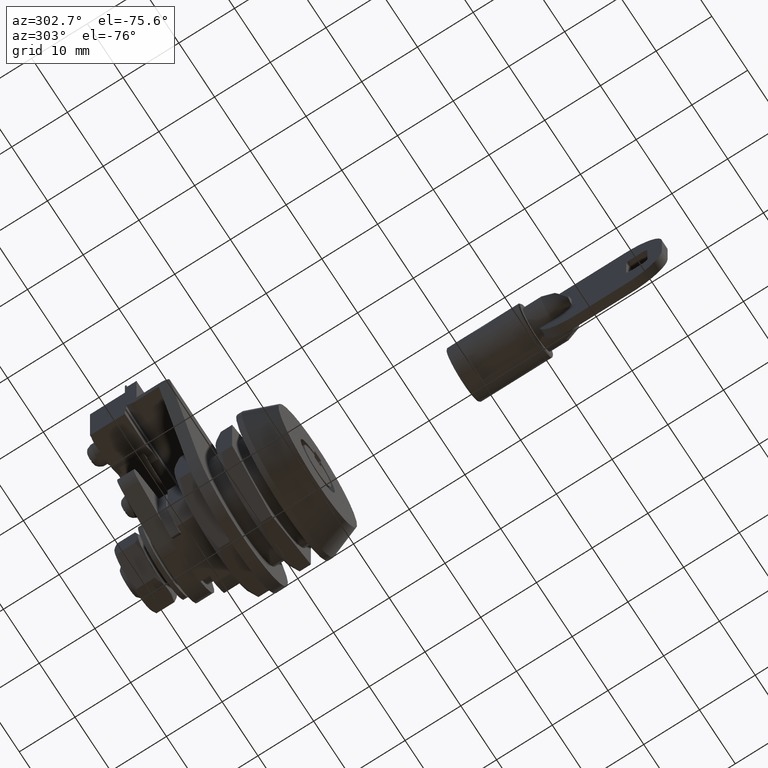
[diagram: clean part render]
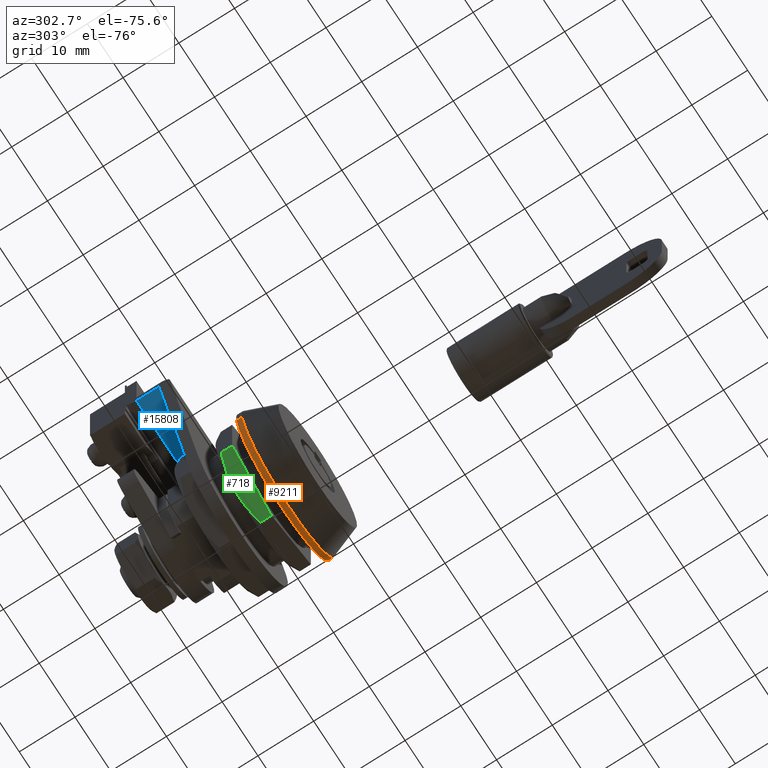
[diagram: same view with three faces highlighted in distinct colors, each labeled with its STEP entity id]
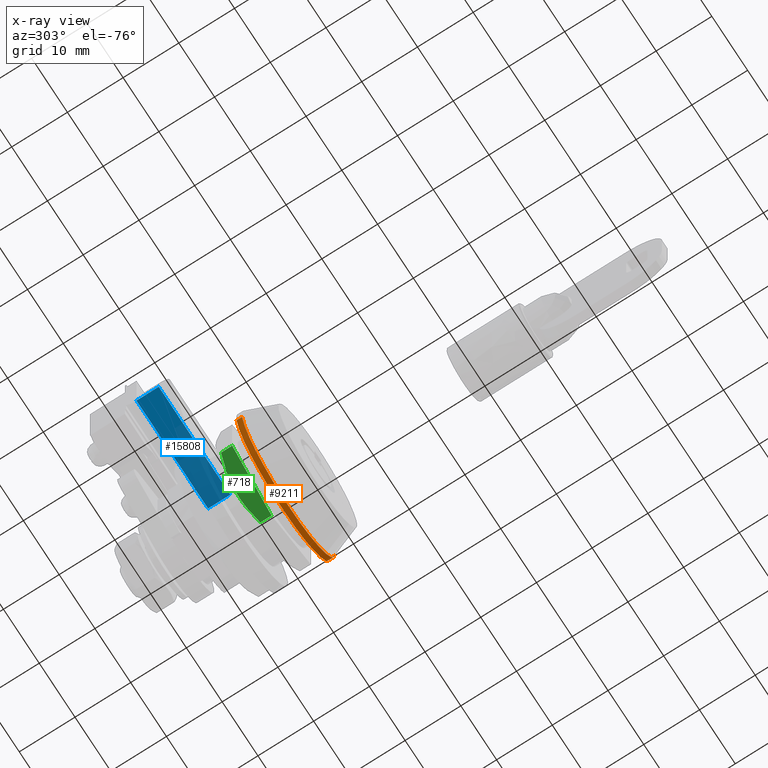
[diagram: x-ray of the same camera — body ghosted, the three highlighted faces saturated]
A machine part, auxiliary view with three faces highlighted in distinct colors.
The next image is the same camera in x-ray (body ghosted, the three faces saturated) — at least one of them is partly hidden behind the body in this view.
Their STEP definitions:

[orange] entity #9211 — the highlighted face is a freeform B-spline surface patch.
#9098=CARTESIAN_POINT('',(6.325003000000222,12.936024903665487,-1.301112250563582));
#9099=CARTESIAN_POINT('',(6.325003000000221,12.925585493234575,-1.392007712779771));
#9100=CARTESIAN_POINT('',(6.325003000000221,11.671596983619057,-12.310427478871693));
#9101=CARTESIAN_POINT('',(6.325003000000222,0.793631013953141,-12.975752379484270));
#9102=CARTESIAN_POINT('',(6.325003000000222,-12.182121365531126,-13.769383393437407));
#9103=CARTESIAN_POINT('',(6.325003000000224,-12.981013635625169,-0.707610236426765));
#9104=CARTESIAN_POINT('',(6.325003000000220,-12.986246076432771,-0.622060585435128));
#9105=CARTESIAN_POINT('',(5.274378000000220,12.936024903665487,-1.301112250563582));
#9106=CARTESIAN_POINT('',(5.274378000000220,12.925585493234575,-1.392007712779771));
#9107=CARTESIAN_POINT('',(5.274378000000220,11.671596983619057,-12.310427478871693));
#9108=CARTESIAN_POINT('',(5.274378000000220,0.793631013953141,-12.975752379484270));
#9109=CARTESIAN_POINT('',(5.274378000000220,-12.182121365531126,-13.769383393437407));
#9110=CARTESIAN_POINT('',(5.274378000000223,-12.981013635625169,-0.707610236426765));
#9111=CARTESIAN_POINT('',(5.274378000000218,-12.986246076432771,-0.622060585435128));
#9119=(BOUNDED_SURFACE()B_SPLINE_SURFACE(2,1,((#9098,#9105),(#9099,#9106),(#9100,#9107),(#9101,#9108),(#9102,#9109),(#9103,#9110),(#9104,#9111)),.UNSPECIFIED.,.F.,.F.,.U.)B_SPLINE_SURFACE_WITH_KNOTS((3,1,2,1,3),(2,2),(0.0,0.202467705706131,19.156880319898949,40.695985563299892,40.898477469576548),(0.0,1.0),.UNSPECIFIED.)GEOMETRIC_REPRESENTATION_ITEM()RATIONAL_B_SPLINE_SURFACE(((0.942325812903284,0.942325812903284),(0.940233382544941,0.940233382544941),(0.742253967444162,0.742253967444162),(1.0,1.0),(0.707106781186548,0.707106781186548),(1.002753526924300,1.002753526924300),(1.005507053848601,1.005507053848601)))REPRESENTATION_ITEM('')SURFACE());
#9120=CARTESIAN_POINT('',(5.300003000000221,12.915099514653940,-1.483308641714691));
#9121=VERTEX_POINT('',#9120);
#9122=CARTESIAN_POINT('',(5.300003000000221,0.0,-13.0));
#9123=VERTEX_POINT('',#9122);
#9124=CARTESIAN_POINT('',(5.300003000000221,12.915099514653937,-1.483308641714691));
#9125=CARTESIAN_POINT('',(5.300003000000221,11.592399074183239,-13.000000000000002));
#9126=CARTESIAN_POINT('',(5.300003000000221,0.0,-13.0));
#9134=(BOUNDED_CURVE()B_SPLINE_CURVE(2,(#9124,#9125,#9126),.UNSPECIFIED.,.F.,.U.)B_SPLINE_CURVE_WITH_KNOTS((3,3),(0.269767755878968,0.500000000000000),.UNSPECIFIED.)CURVE()GEOMETRIC_REPRESENTATION_ITEM()RATIONAL_B_SPLINE_CURVE((0.957343736456011,0.730266147778985,1.0))REPRESENTATION_ITEM(''));
#9135=EDGE_CURVE('',#9121,#9123,#9134,.T.);
#9136=ORIENTED_EDGE('',*,*,#9135,.F.);
#9137=CARTESIAN_POINT('',(6.300003000000221,12.915099514658200,-1.483308641677643));
#9138=VERTEX_POINT('',#9137);
#9139=CARTESIAN_POINT('',(6.300003000000221,12.915099514658200,-1.483308641677643));
#9140=CARTESIAN_POINT('',(5.300003000000221,12.915099514653940,-1.483308641714691));
#9141=QUASI_UNIFORM_CURVE('',1,(#9139,#9140),.UNSPECIFIED.,.F.,.U.);
#9142=EDGE_CURVE('',#9138,#9121,#9141,.T.);
#9143=ORIENTED_EDGE('',*,*,#9142,.F.);
#9144=CARTESIAN_POINT('',(6.300003000000221,0.0,-13.0));
#9145=VERTEX_POINT('',#9144);
#9146=CARTESIAN_POINT('',(6.300003000000221,12.915099514658191,-1.483308641677642));
#9147=CARTESIAN_POINT('',(6.300003000000221,11.592399074250185,-13.0));
#9148=CARTESIAN_POINT('',(6.300003000000221,0.0,-13.0));
#9156=(BOUNDED_CURVE()B_SPLINE_CURVE(2,(#9146,#9147,#9148),.UNSPECIFIED.,.F.,.U.)B_SPLINE_CURVE_WITH_KNOTS((3,3),(0.269767755877997,0.500000000000000),.UNSPECIFIED.)CURVE()GEOMETRIC_REPRESENTATION_ITEM()RATIONAL_B_SPLINE_CURVE((0.957343736457926,0.730266147777848,1.0))REPRESENTATION_ITEM(''));
#9157=EDGE_CURVE('',#9138,#9145,#9156,.T.);
#9158=ORIENTED_EDGE('',*,*,#9157,.T.);
#9159=CARTESIAN_POINT('',(6.300003000000221,-12.975753640496251,-0.793610396051807));
#9160=VERTEX_POINT('',#9159);
#9161=CARTESIAN_POINT('',(6.300003000000221,0.0,-13.0));
#9162=CARTESIAN_POINT('',(6.300003000000221,-12.229198337727102,-13.000000000000004));
#9163=CARTESIAN_POINT('',(6.300003000000221,-12.975753640496249,-0.793610396051807));
#9171=(BOUNDED_CURVE()B_SPLINE_CURVE(2,(#9161,#9162,#9163),.UNSPECIFIED.,.F.,.U.)B_SPLINE_CURVE_WITH_KNOTS((3,3),(0.500000000000000,0.739333236411304),.UNSPECIFIED.)CURVE()GEOMETRIC_REPRESENTATION_ITEM()RATIONAL_B_SPLINE_CURVE((1.0,0.719603672073808,0.976072629270983))REPRESENTATION_ITEM(''));
#9172=EDGE_CURVE('',#9145,#9160,#9171,.T.);
#9173=ORIENTED_EDGE('',*,*,#9172,.T.);
#9174=CARTESIAN_POINT('',(5.300003000000713,-12.975752461198621,-0.793629677933078));
#9175=VERTEX_POINT('',#9174);
#9176=CARTESIAN_POINT('',(6.300003000000221,-12.975753640496251,-0.793610396051807));
#9177=CARTESIAN_POINT('',(5.300003000000713,-12.975752461198621,-0.793629677933078));
#9178=QUASI_UNIFORM_CURVE('',1,(#9176,#9177),.UNSPECIFIED.,.F.,.U.);
#9179=EDGE_CURVE('',#9160,#9175,#9178,.T.);
#9180=ORIENTED_EDGE('',*,*,#9179,.T.);
#9181=CARTESIAN_POINT('',(5.299999453821373,-12.959924316246340,-1.019964178034852));
#9182=VERTEX_POINT('',#9181);
#9183=CARTESIAN_POINT('',(5.299999453821373,-12.959924316246342,-1.019964178034852));
#9184=CARTESIAN_POINT('',(5.300001226911045,-12.968825973339369,-0.906865986424983));
#9185=CARTESIAN_POINT('',(5.300003000000713,-12.975752461198622,-0.793629677933078));
#9193=(BOUNDED_CURVE()B_SPLINE_CURVE(2,(#9183,#9184,#9185),.UNSPECIFIED.,.F.,.U.)B_SPLINE_CURVE_WITH_KNOTS((3,3),(0.736331353031759,0.739332980007873),.UNSPECIFIED.)CURVE()GEOMETRIC_REPRESENTATION_ITEM()RATIONAL_B_SPLINE_CURVE((0.969723465524540,0.972855550253910,0.976072079748920))REPRESENTATION_ITEM(''));
#9194=EDGE_CURVE('',#9182,#9175,#9193,.T.);
#9195=ORIENTED_EDGE('',*,*,#9194,.F.);
#9196=CARTESIAN_POINT('',(5.300003000000221,0.0,-13.0));
#9197=CARTESIAN_POINT('',(5.300001226910798,-12.017079409124143,-12.999999947503987));
#9198=CARTESIAN_POINT('',(5.299999453821373,-12.959924316246344,-1.019964178034852));
#9206=(BOUNDED_CURVE()B_SPLINE_CURVE(2,(#9196,#9197,#9198),.UNSPECIFIED.,.F.,.U.)B_SPLINE_CURVE_WITH_KNOTS((3,3),(0.500000000000000,0.736331353031759),.UNSPECIFIED.)CURVE()GEOMETRIC_REPRESENTATION_ITEM()RATIONAL_B_SPLINE_CURVE((1.0,0.723120597215959,0.969723465524540))REPRESENTATION_ITEM(''));
#9207=EDGE_CURVE('',#9123,#9182,#9206,.T.);
#9208=ORIENTED_EDGE('',*,*,#9207,.F.);
#9209=EDGE_LOOP('',(#9136,#9143,#9158,#9173,#9180,#9195,#9208));
#9210=FACE_OUTER_BOUND('',#9209,.T.);
#9211=ADVANCED_FACE('',(#9210),#9119,.T.);

[blue] entity #15808 — the highlighted face is a freeform B-spline surface patch.
#15342=CARTESIAN_POINT('',(19.699997000000248,0.0,15.500000000000000));
#15343=VERTEX_POINT('',#15342);
#15359=CARTESIAN_POINT('',(19.699997000000248,20.0,15.500000000000000));
#15360=VERTEX_POINT('',#15359);
#15361=CARTESIAN_POINT('',(19.699997000000248,20.0,15.500000000000000));
#15362=CARTESIAN_POINT('',(19.699997000000248,0.0,15.500000000000000));
#15363=QUASI_UNIFORM_CURVE('',1,(#15361,#15362),.UNSPECIFIED.,.F.,.U.);
#15364=EDGE_CURVE('',#15360,#15343,#15363,.T.);
#15781=CARTESIAN_POINT('',(15.500196946945509,-0.998999961236120,15.500000000000000));
#15782=CARTESIAN_POINT('',(19.899796802715439,-0.998999961236120,15.500000000000000));
#15783=CARTESIAN_POINT('',(15.500196946945509,20.999000497677919,15.500000000000000));
#15784=CARTESIAN_POINT('',(19.899796802715439,20.999000497677919,15.500000000000000));
#15785=B_SPLINE_SURFACE_WITH_KNOTS('',1,1,((#15781,#15783),(#15782,#15784)),.UNSPECIFIED.,.F.,.F.,.U.,(2,2),(2,2),(0.0,4.399599855769926),(0.0,21.998000458914039),.UNSPECIFIED.);
#15786=CARTESIAN_POINT('',(15.699997000000250,20.0,15.500000000000000));
#15787=VERTEX_POINT('',#15786);
#15788=CARTESIAN_POINT('',(19.699997000000248,20.0,15.500000000000000));
#15789=CARTESIAN_POINT('',(15.699997000000250,20.0,15.500000000000000));
#15790=QUASI_UNIFORM_CURVE('',1,(#15788,#15789),.UNSPECIFIED.,.F.,.U.);
#15791=EDGE_CURVE('',#15360,#15787,#15790,.T.);
#15792=ORIENTED_EDGE('',*,*,#15791,.F.);
#15793=ORIENTED_EDGE('',*,*,#15364,.T.);
#15794=CARTESIAN_POINT('',(15.699997000000200,0.0,15.500000000000000));
#15795=VERTEX_POINT('',#15794);
#15796=CARTESIAN_POINT('',(19.699997000000248,0.0,15.500000000000000));
#15797=CARTESIAN_POINT('',(15.699997000000200,0.0,15.500000000000000));
#15798=QUASI_UNIFORM_CURVE('',1,(#15796,#15797),.UNSPECIFIED.,.F.,.U.);
#15799=EDGE_CURVE('',#15343,#15795,#15798,.T.);
#15800=ORIENTED_EDGE('',*,*,#15799,.T.);
#15801=CARTESIAN_POINT('',(15.699997000000200,0.0,15.500000000000000));
#15802=CARTESIAN_POINT('',(15.699997000000250,20.0,15.500000000000000));
#15803=QUASI_UNIFORM_CURVE('',1,(#15801,#15802),.UNSPECIFIED.,.F.,.U.);
#15804=EDGE_CURVE('',#15795,#15787,#15803,.T.);
#15805=ORIENTED_EDGE('',*,*,#15804,.T.);
#15806=EDGE_LOOP('',(#15792,#15793,#15800,#15805));
#15807=FACE_OUTER_BOUND('',#15806,.T.);
#15808=ADVANCED_FACE('',(#15807),#15785,.F.);

[green] entity #718 — the highlighted face is a freeform B-spline surface patch.
#240=CARTESIAN_POINT('',(16.199997000000199,11.0,-6.350861000000000));
#241=VERTEX_POINT('',#240);
#247=CARTESIAN_POINT('',(16.199997000000199,-0.000013856422655,-12.701713999999320));
#248=VERTEX_POINT('',#247);
#249=CARTESIAN_POINT('',(16.199997000000199,-0.000013856422655,-12.701713999999320));
#250=CARTESIAN_POINT('',(16.199997000000199,11.0,-6.350861000000000));
#251=QUASI_UNIFORM_CURVE('',1,(#249,#250),.UNSPECIFIED.,.F.,.U.);
#252=EDGE_CURVE('',#248,#241,#251,.T.);
#357=CARTESIAN_POINT('',(18.217520961921249,11.0,-6.350861000000000));
#358=VERTEX_POINT('',#357);
#374=CARTESIAN_POINT('',(19.199997000000199,5.514349584471230,-9.517998773928049));
#375=VERTEX_POINT('',#374);
#389=CARTESIAN_POINT('',(19.199997000000199,5.514349584471230,-9.517998773928049));
#390=CARTESIAN_POINT('',(19.199767514845469,5.739940517733118,-9.387753951150673));
#391=CARTESIAN_POINT('',(19.194161975276309,5.966559673435007,-9.256915484614899));
#392=CARTESIAN_POINT('',(19.171959676700070,6.426106317196936,-8.991596438723782));
#393=CARTESIAN_POINT('',(19.154992692472302,6.659212831744273,-8.857012498507386));
#394=CARTESIAN_POINT('',(19.087830726537671,7.356199715792004,-8.454607437814646));
#395=CARTESIAN_POINT('',(19.021336714369941,7.817741972089114,-8.188136225933439));
#396=CARTESIAN_POINT('',(18.764572637097210,9.194151571489517,-7.393466769360336));
#397=CARTESIAN_POINT('',(18.517243732006008,10.100833763490950,-6.869994217936579));
#398=CARTESIAN_POINT('',(18.217520961921249,11.0,-6.350861000000000));
#399=B_SPLINE_CURVE_WITH_KNOTS('',3,(#389,#390,#391,#392,#393,#394,#395,#396,#397,#398),.UNSPECIFIED.,.F.,.U.,(4,2,2,2,4),(0.502215464993374,0.562499999999999,0.624999999999999,0.749999999999999,1.0),.UNSPECIFIED.);
#400=EDGE_CURVE('',#375,#358,#399,.T.);
#419=CARTESIAN_POINT('',(18.217518618810502,-0.000013856422655,-12.701713999999320));
#420=VERTEX_POINT('',#419);
#421=CARTESIAN_POINT('',(19.199997000000199,5.485643588418730,-9.534572167700789));
#422=VERTEX_POINT('',#421);
#423=CARTESIAN_POINT('',(18.217518618810502,-0.000013856422655,-12.701713999999320));
#424=CARTESIAN_POINT('',(18.516868482489830,0.898032802634663,-12.183227169595650));
#425=CARTESIAN_POINT('',(18.763587082526708,1.802626936224549,-11.660960157746681));
#426=CARTESIAN_POINT('',(19.019926257963640,3.173667548028919,-10.869390483721700));
#427=CARTESIAN_POINT('',(19.086370735501561,3.633044975904482,-10.604169134545661));
#428=CARTESIAN_POINT('',(19.176131340341261,4.555885389508855,-10.071367641224089));
#429=CARTESIAN_POINT('',(19.199528034547310,5.019338352492302,-9.803793283706028));
#430=CARTESIAN_POINT('',(19.199997000000199,5.485643588418730,-9.534572167700789));
#431=B_SPLINE_CURVE_WITH_KNOTS('',3,(#423,#424,#425,#426,#427,#428,#429,#430),.UNSPECIFIED.,.F.,.U.,(4,2,2,4),(0.0,0.250000000000000,0.374999999999999,0.499657931590594),.UNSPECIFIED.);
#432=EDGE_CURVE('',#420,#422,#431,.T.);
#687=CARTESIAN_POINT('',(16.199997000000199,-0.000013856422655,-12.701713999999320));
#688=CARTESIAN_POINT('',(18.217518618810502,-0.000013856422655,-12.701713999999320));
#689=QUASI_UNIFORM_CURVE('',1,(#687,#688),.UNSPECIFIED.,.F.,.U.);
#690=EDGE_CURVE('',#248,#420,#689,.T.);
#697=CARTESIAN_POINT('',(16.050146960209180,11.549450631508380,-6.033635927648926));
#698=CARTESIAN_POINT('',(16.050146960209180,-0.549463996192071,-13.018938788445180));
#699=CARTESIAN_POINT('',(19.349846852036588,11.549450631508380,-6.033635927648926));
#700=CARTESIAN_POINT('',(19.349846852036588,-0.549463996192071,-13.018938788445180));
#701=B_SPLINE_SURFACE_WITH_KNOTS('',1,1,((#697,#699),(#698,#700)),.UNSPECIFIED.,.F.,.F.,.U.,(2,2),(2,2),(0.0,13.970618856207910),(0.0,3.299699891827405),.UNSPECIFIED.);
#702=ORIENTED_EDGE('',*,*,#690,.F.);
#703=ORIENTED_EDGE('',*,*,#252,.T.);
#704=CARTESIAN_POINT('',(16.199997000000199,11.0,-6.350861000000000));
#705=CARTESIAN_POINT('',(18.217520961921249,11.0,-6.350861000000000));
#706=QUASI_UNIFORM_CURVE('',1,(#704,#705),.UNSPECIFIED.,.F.,.U.);
#707=EDGE_CURVE('',#241,#358,#706,.T.);
#708=ORIENTED_EDGE('',*,*,#707,.T.);
#709=ORIENTED_EDGE('',*,*,#400,.F.);
#710=CARTESIAN_POINT('',(19.199997000000199,5.514349584471230,-9.517998773928049));
#711=CARTESIAN_POINT('',(19.199997000000199,5.485643588418730,-9.534572167700789));
#712=QUASI_UNIFORM_CURVE('',1,(#710,#711),.UNSPECIFIED.,.F.,.U.);
#713=EDGE_CURVE('',#375,#422,#712,.T.);
#714=ORIENTED_EDGE('',*,*,#713,.T.);
#715=ORIENTED_EDGE('',*,*,#432,.F.);
#716=EDGE_LOOP('',(#702,#703,#708,#709,#714,#715));
#717=FACE_OUTER_BOUND('',#716,.T.);
#718=ADVANCED_FACE('',(#717),#701,.F.);